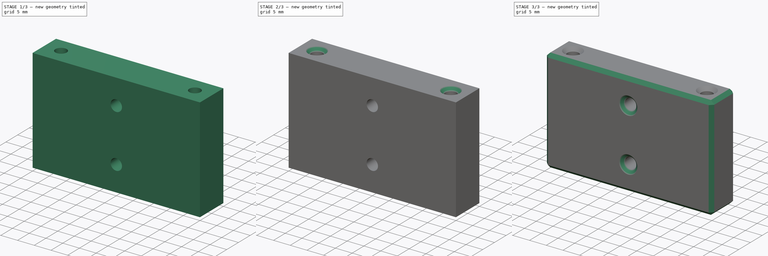
[diagram: build sequence overview — one tinted view per stage of 3, left to right]
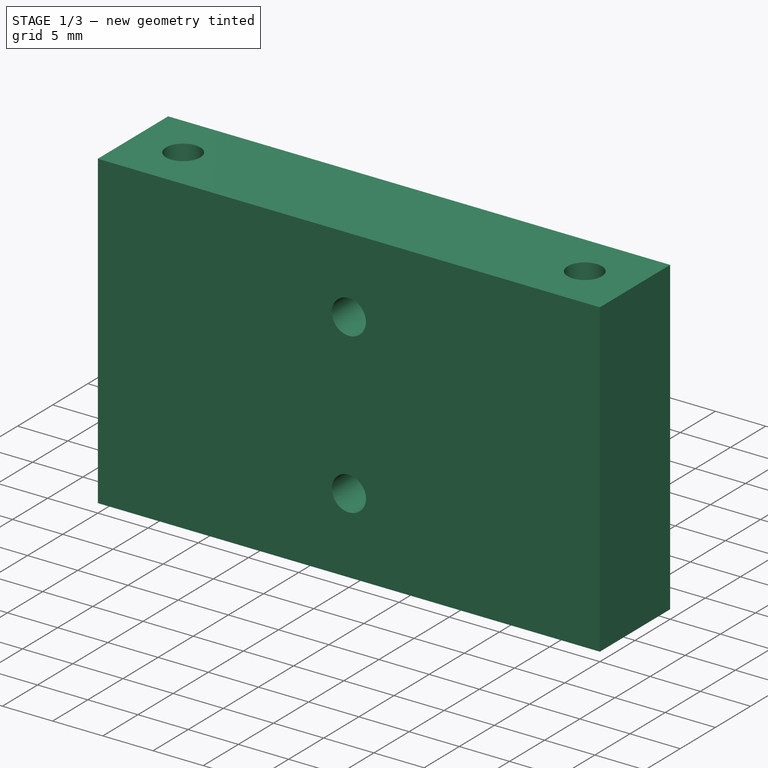
[diagram: stage 1 of 3 — iso view after this stage's code; geometry added in this stage tinted green]
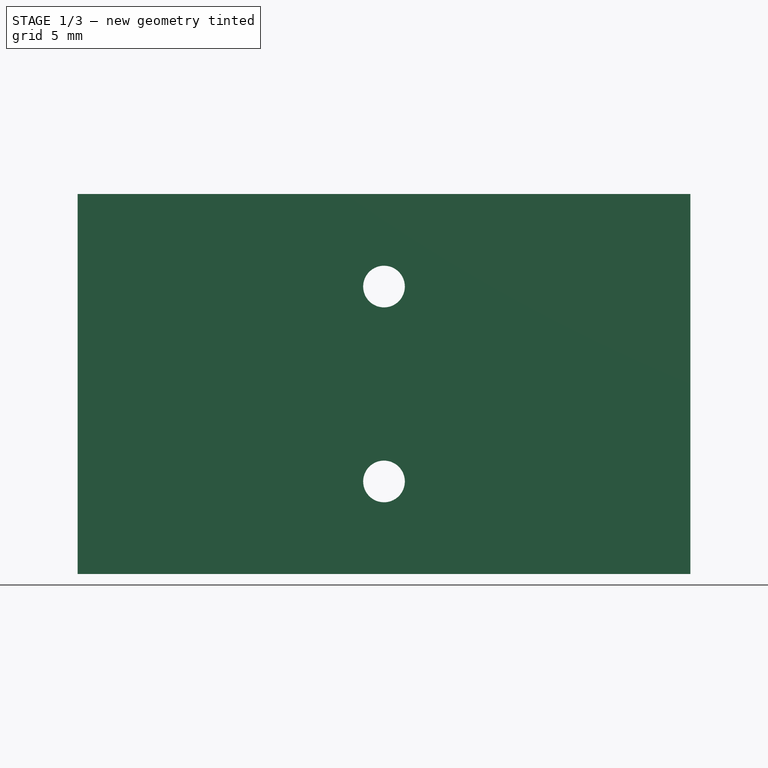
[diagram: stage 1 of 3 — front view after this stage's code; geometry added in this stage tinted green]
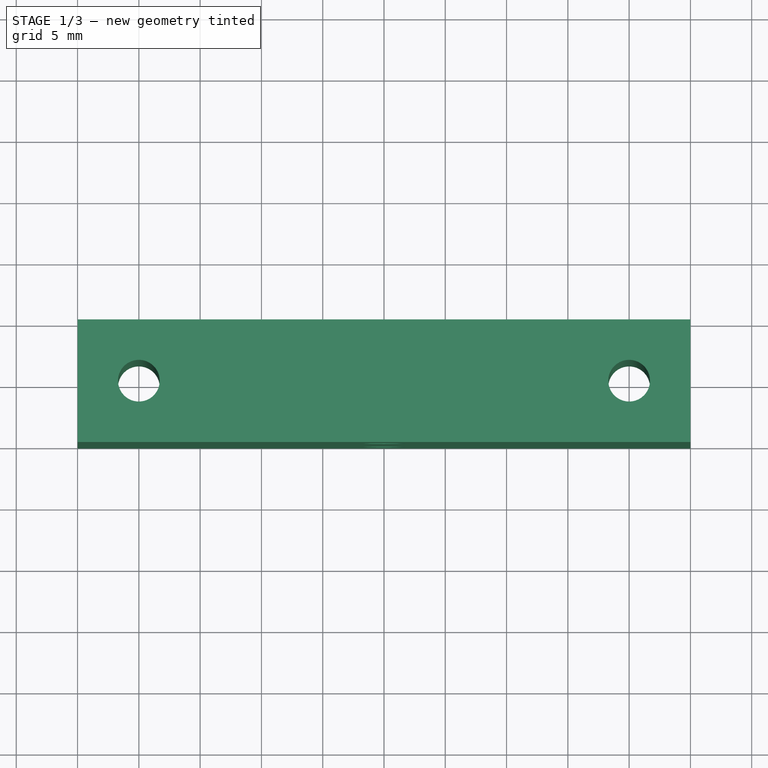
[diagram: stage 1 of 3 — top view after this stage's code; geometry added in this stage tinted green]
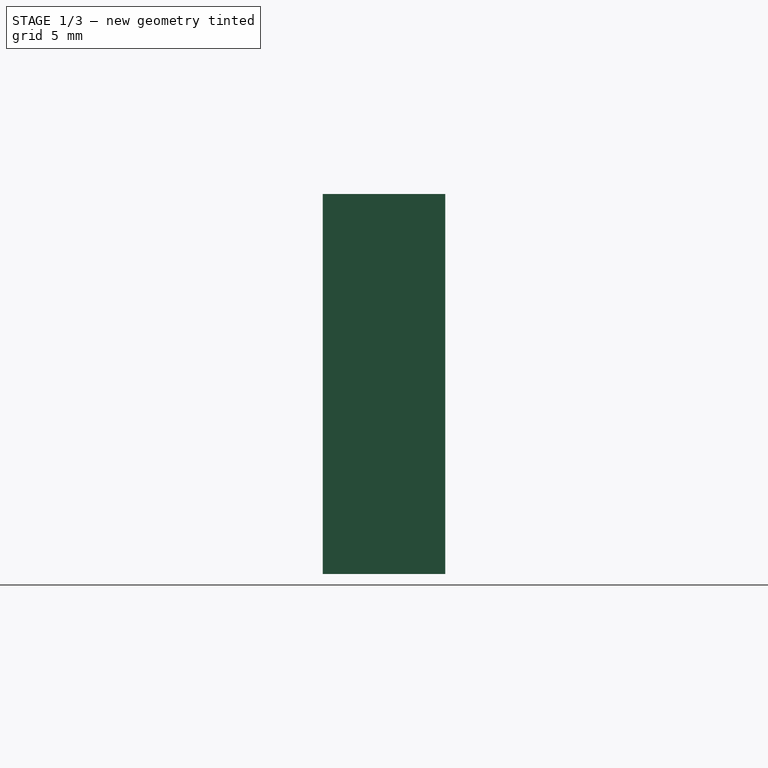
[diagram: stage 1 of 3 — right view after this stage's code; geometry added in this stage tinted green]
FCSTD DOCUMENT  (FreeCAD 1.0R39109 (Git))
Label: wrist_spacer
License: All rights reserved
LicenseURL: https://en.wikipedia.org/wiki/All_rights_reserved
objects: PartDesign::Chamfer×3, Sketcher::SketchObject×2, PartDesign::Pad×1, PartDesign::Pocket×1, PartDesign::Body×1
note: 20 computed .brp shape members not serialized (recipe doc carries the construction recipe); baked Part::Feature solids carry a one-line shape summary decoded from their .brp

FEATURE [Sketcher::SketchObject] Sketch
  ArcFitTolerance = 1e-06
  AttachmentSupport = -> [XY_Plane]
  FullyConstrained = true
  MakeInternals = false
  MapMode = 5
  sketch-geometry (12):
    g0: LineSegment [constr] StartX=0 StartY=0 StartZ=0 EndX=-25 EndY=0 EndZ=0
    g1: LineSegment [constr] StartX=0 StartY=0 StartZ=0 EndX=25 EndY=0 EndZ=0
    g2: LineSegment StartX=25 StartY=0 StartZ=0 EndX=25 EndY=5 EndZ=0
    g3: LineSegment StartX=25 StartY=0 StartZ=0 EndX=25 EndY=-5 EndZ=0
    g4: LineSegment StartX=-25 StartY=0 StartZ=0 EndX=-25 EndY=5 EndZ=0
    g5: LineSegment StartX=-25 StartY=0 StartZ=0 EndX=-25 EndY=-5 EndZ=0
    g6: LineSegment StartX=-25 StartY=5 StartZ=0 EndX=25 EndY=5 EndZ=0
    g7: LineSegment StartX=25 StartY=-5 StartZ=0 EndX=-25 EndY=-5 EndZ=0
    g8: LineSegment [constr] StartX=-25 StartY=0 StartZ=0 EndX=-20 EndY=0 EndZ=0
    g9: LineSegment [constr] StartX=25 StartY=0 StartZ=0 EndX=20 EndY=0 EndZ=0
    g10: Circle CenterX=-20 CenterY=0 CenterZ=0 NormalX=0 NormalY=0 NormalZ=1 AngleXU=0 Radius=1.7
    g11: Circle CenterX=20 CenterY=0 CenterZ=0 NormalX=0 NormalY=0 NormalZ=1 AngleXU=0 Radius=1.7
  constraints (32):
    c: Distance(g0) = 25
    c: Coincident(g0,g-1)
    c: PointOnObject(g0,g-1)
    c: Coincident(g1,g0)
    c: PointOnObject(g1,g-1)
    c: Equal(g1,g0)
    c: Distance(g2) = 5
    c: Coincident(g2,g1)
    c: Vertical(g2)
    c: Coincident(g3,g1)
    c: Vertical(g3)
    c: Equal(g3,g2)
    c: Coincident(g4,g0)
    c: Vertical(g4)
    c: Equal(g4,g2)
    c: Coincident(g5,g0)
    c: Vertical(g5)
    c: Equal(g5,g2)
    c: Coincident(g6,g4)
    c: Coincident(g6,g2)
    c: Coincident(g7,g3)
    c: Coincident(g7,g5)
    c: Distance(g8) = 5
    c: Coincident(g8,g0)
    c: PointOnObject(g8,g0)
    c: Distance(g9) = 5
    c: Coincident(g9,g1)
    c: PointOnObject(g9,g1)
    c: Diameter(g10) = 3.4
    c: Coincident(g10,g8)
    c: Coincident(g11,g9)
    c: Equal(g11,g10)
FEATURE [PartDesign::Pad] Pad
  Direction = (0,0,1)
  Length = 31
  Length2 = 10
  Profile = -> Sketch
  ReferenceAxis = -> Sketch [N_Axis]
  Refine = true
  Suppressed = false
  Type = 0
FEATURE [Sketcher::SketchObject] Sketch001
  ArcFitTolerance = 1e-06
  AttachmentSupport = -> [Pad]
  ExternalGeometry = -> [Pad]
  FullyConstrained = true
  MakeInternals = false
  MapMode = 5
  Placement = pos=(1.33e-14,-5,0) rot=(1,0,0;1.5708rad)
  sketch-geometry (6):
    g0: LineSegment [constr] StartX=-1.58e-14 StartY=31 StartZ=0 EndX=-1.58e-14 EndY=0 EndZ=0
    g1: Circle [constr] CenterX=-1.58e-14 CenterY=15.5 CenterZ=0 NormalX=0 NormalY=0 NormalZ=1 AngleXU=0 Radius=7.95
    g2: LineSegment [constr] StartX=-1.58e-14 StartY=15.5 StartZ=0 EndX=-1.58e-14 EndY=23.45 EndZ=0
    g3: LineSegment [constr] StartX=-1.58e-14 StartY=15.5 StartZ=0 EndX=-1.58e-14 EndY=7.55 EndZ=0
    g4: Circle CenterX=-1.58e-14 CenterY=23.45 CenterZ=0 NormalX=0 NormalY=0 NormalZ=1 AngleXU=0 Radius=1.7
    g5: Circle CenterX=-1.58e-14 CenterY=7.55 CenterZ=0 NormalX=0 NormalY=0 NormalZ=1 AngleXU=0 Radius=1.7
  constraints (14):
    c: Symmetric(g-4,g-4,g0)
    c: Symmetric(g-3,g-3,g0)
    c: Symmetric(g0,g0,g1)
    c: Diameter(g1) = 15.9
    c: Coincident(g2,g1)
    c: PointOnObject(g2,g1)
    c: Vertical(g2)
    c: Coincident(g3,g1)
    c: PointOnObject(g3,g1)
    c: Vertical(g3)
    c: Coincident(g4,g2)
    c: Diameter(g4) = 3.4
    c: Coincident(g5,g3)
    c: Equal(g5,g4)
FEATURE [PartDesign::Pocket] Pocket
  BaseFeature = -> Pad
  Direction = (-2.7e-15,1,-2e-16)
  Length = 18
  Length2 = 5
  Profile = -> Sketch001
  ReferenceAxis = -> Sketch001 [N_Axis]
  Refine = true
  Suppressed = false
  Type = 0
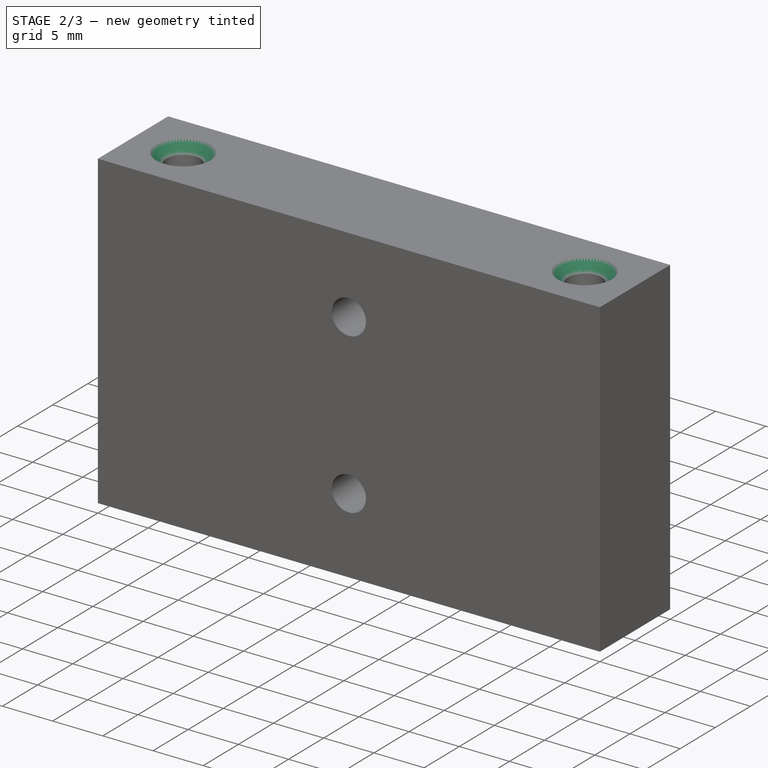
[diagram: stage 2 of 3 — iso view after this stage's code; geometry added in this stage tinted green]
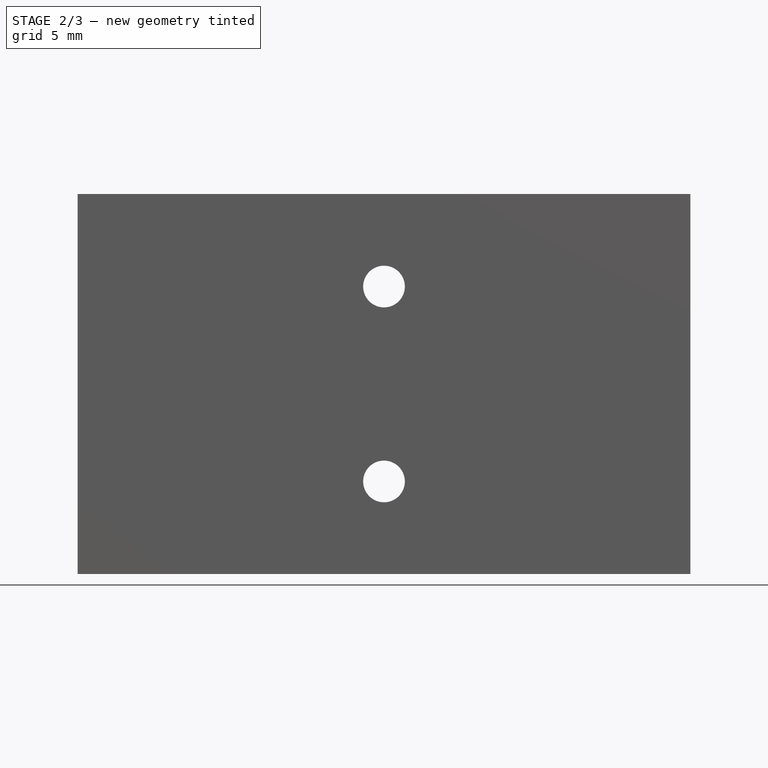
[diagram: stage 2 of 3 — front view after this stage's code; geometry added in this stage tinted green]
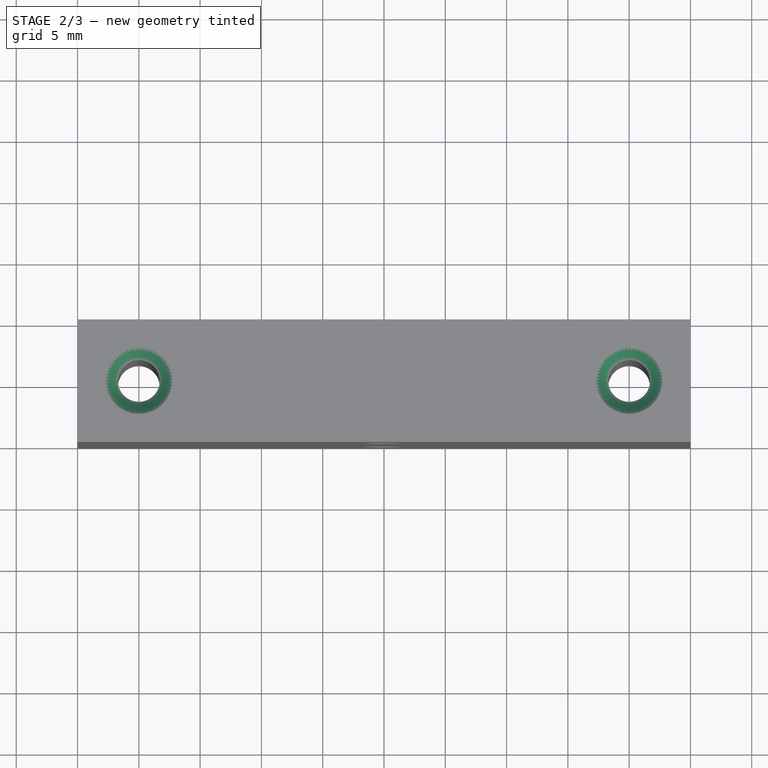
[diagram: stage 2 of 3 — top view after this stage's code; geometry added in this stage tinted green]
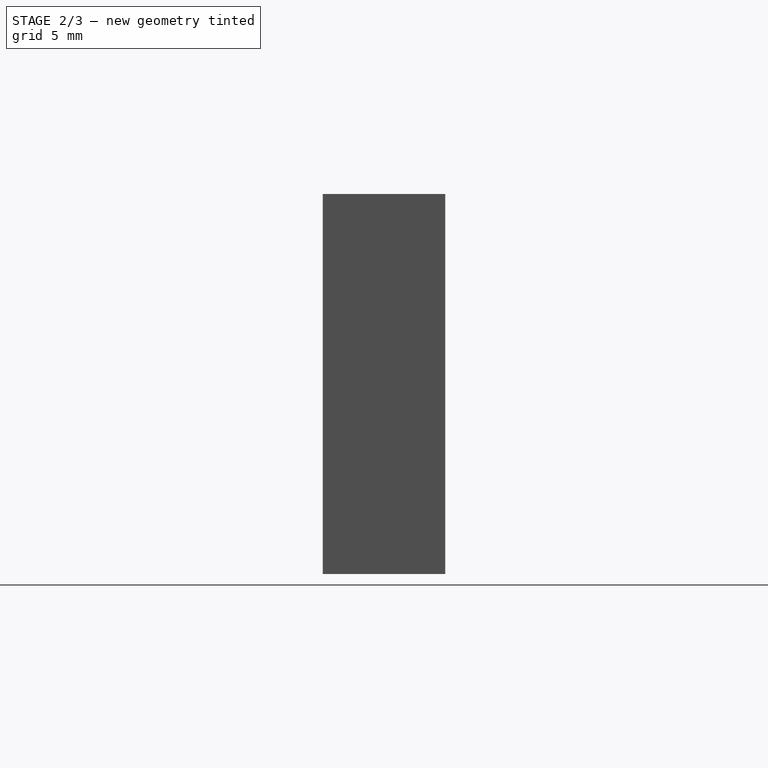
[diagram: stage 2 of 3 — right view after this stage's code; geometry added in this stage tinted green]
FEATURE [PartDesign::Chamfer] Chamfer
  Angle = 45
  Base = -> Pocket [Edge17,Edge16,Edge13,Edge12]
  BaseFeature = -> Pocket
  ChamferType = 0
  FlipDirection = false
  Refine = true
  Size = 1
  Size2 = 1
  SupportTransform = false
  Suppressed = false
  UseAllEdges = false
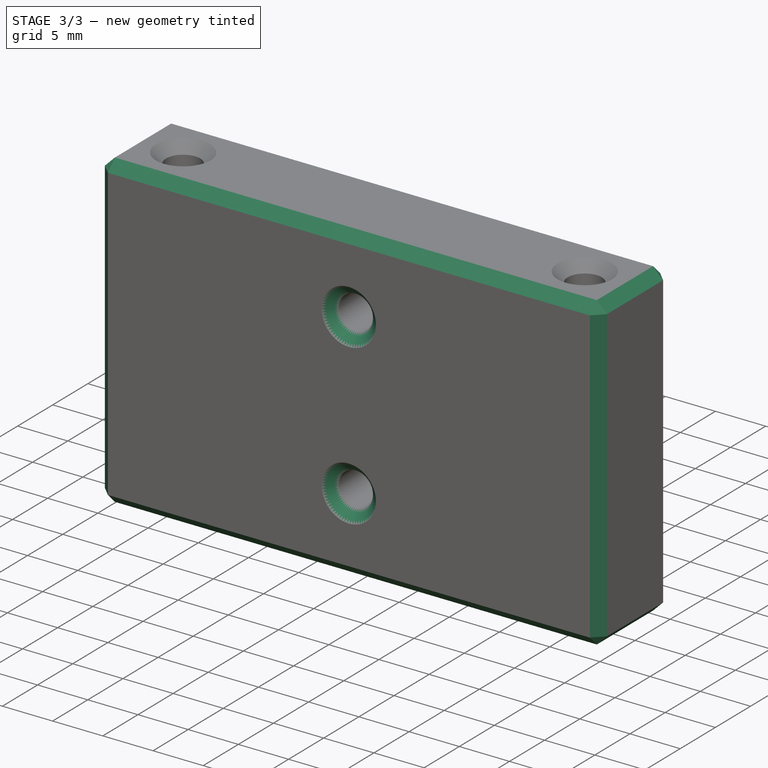
[diagram: stage 3 of 3 — iso view after this stage's code; geometry added in this stage tinted green]
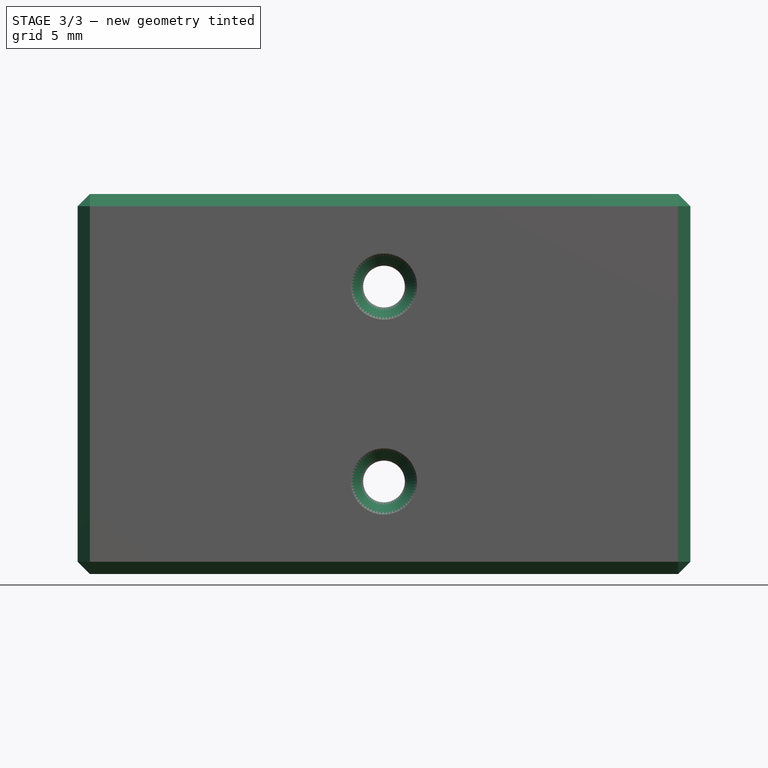
[diagram: stage 3 of 3 — front view after this stage's code; geometry added in this stage tinted green]
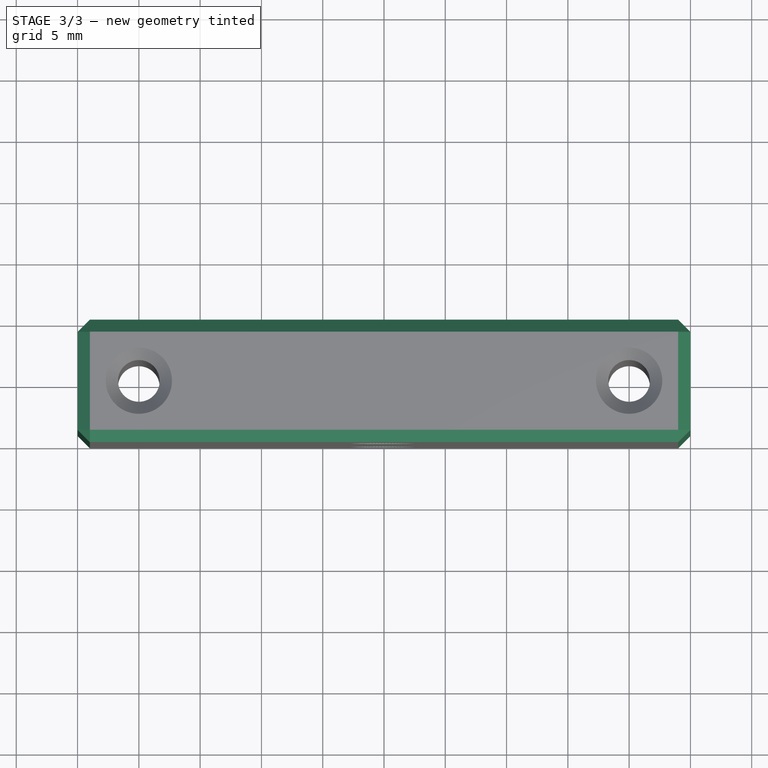
[diagram: stage 3 of 3 — top view after this stage's code; geometry added in this stage tinted green]
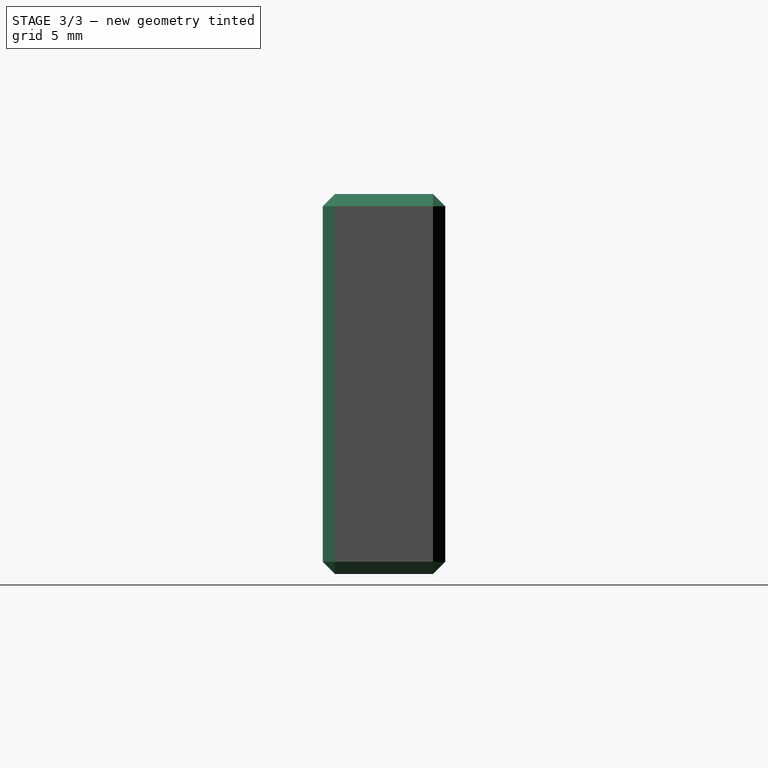
[diagram: stage 3 of 3 — right view after this stage's code; geometry added in this stage tinted green]
FEATURE [PartDesign::Chamfer] Chamfer001
  Angle = 45
  Base = -> Chamfer [Edge19,Edge20,Edge15,Edge14]
  BaseFeature = -> Chamfer
  ChamferType = 0
  FlipDirection = false
  Refine = true
  Size = 1
  Size2 = 1
  SupportTransform = false
  Suppressed = false
  UseAllEdges = false
FEATURE [PartDesign::Chamfer] Chamfer002
  Angle = 45
  Base = -> Chamfer001 [Edge5,Edge20,Edge10,Edge2,Edge4,Edge18,Edge11,Edge17,Edge13,Edge14,Edge3,Edge9]
  BaseFeature = -> Chamfer001
  ChamferType = 0
  FlipDirection = false
  Refine = true
  Size = 1
  Size2 = 1
  SupportTransform = false
  Suppressed = false
  UseAllEdges = false
FEATURE [PartDesign::Body] Body
  AllowCompound = false
  Group = -> [Sketch,Pad,Sketch001,Pocket,Chamfer,Chamfer001,Chamfer002]
  Origin = -> Origin
  Tip = -> Chamfer002
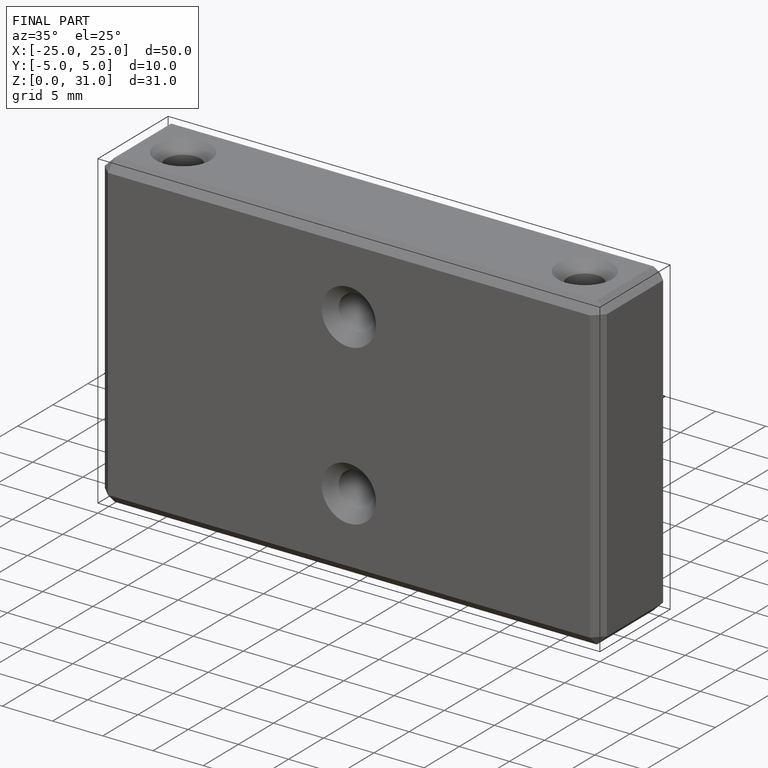
[diagram: finished part — iso view with bounding-box wireframe]
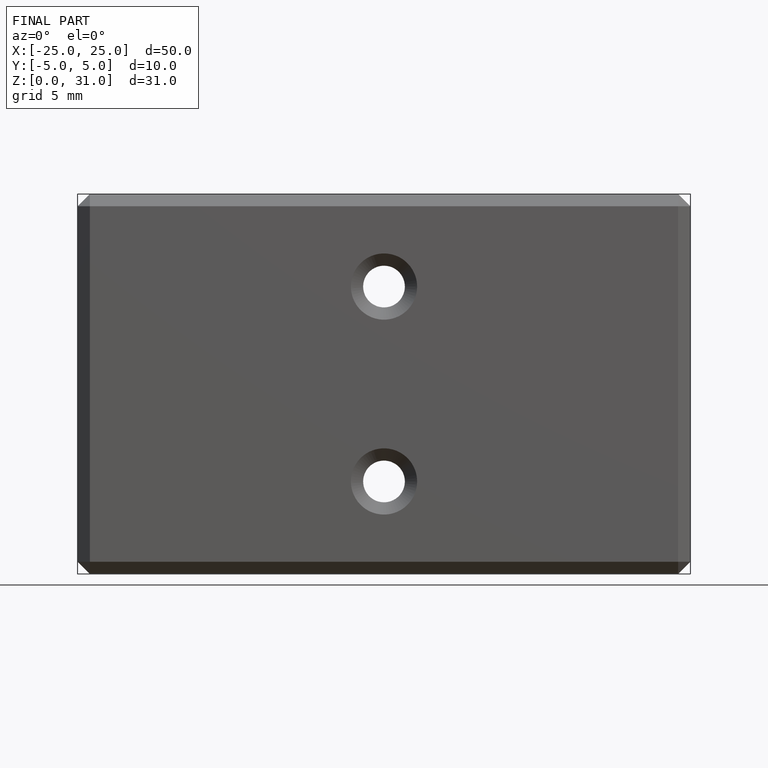
[diagram: finished part — front view with bounding-box wireframe]
